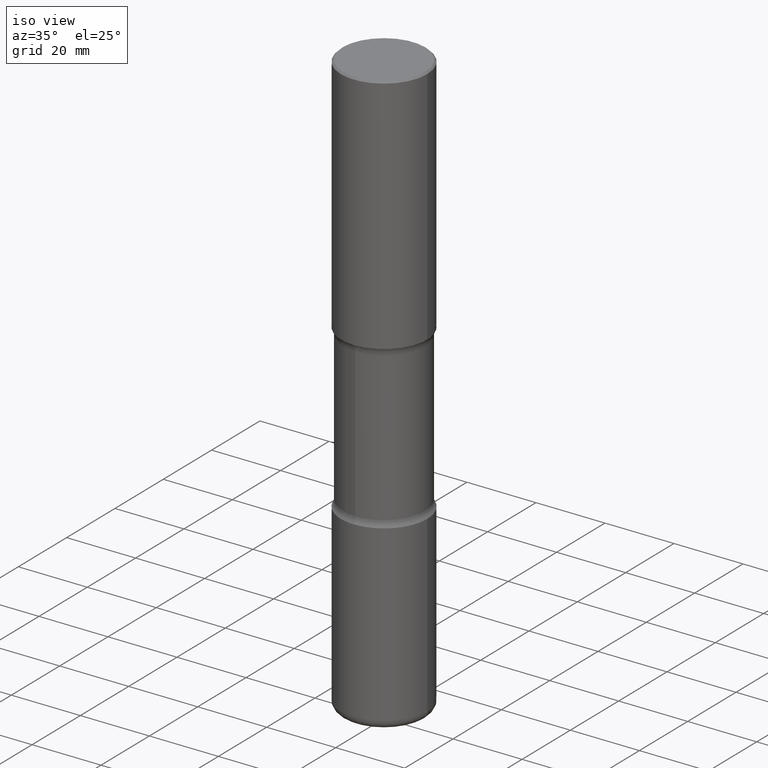
[diagram: clean part render]
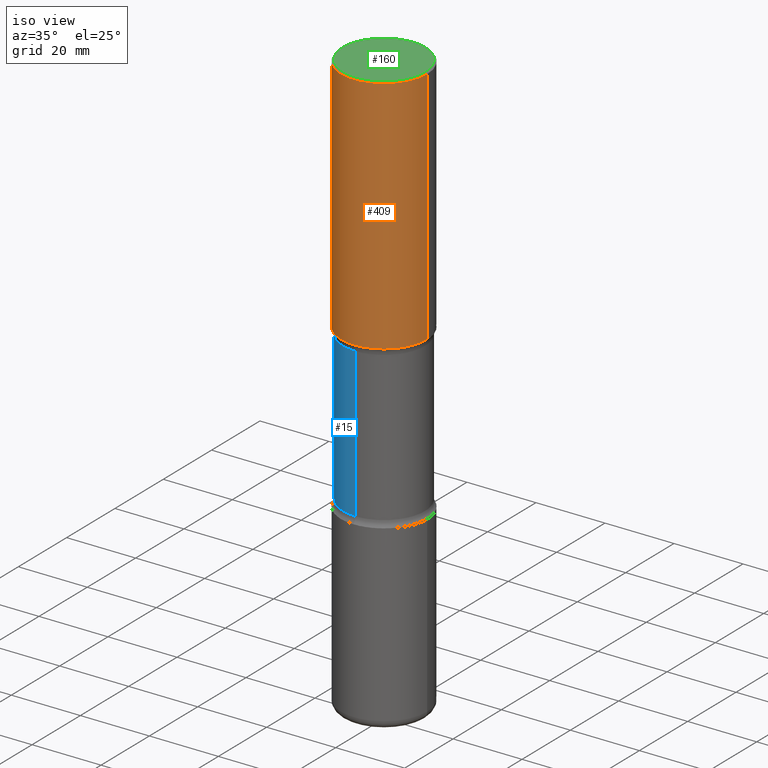
[diagram: same view with three faces highlighted in distinct colors, each labeled with its STEP entity id]
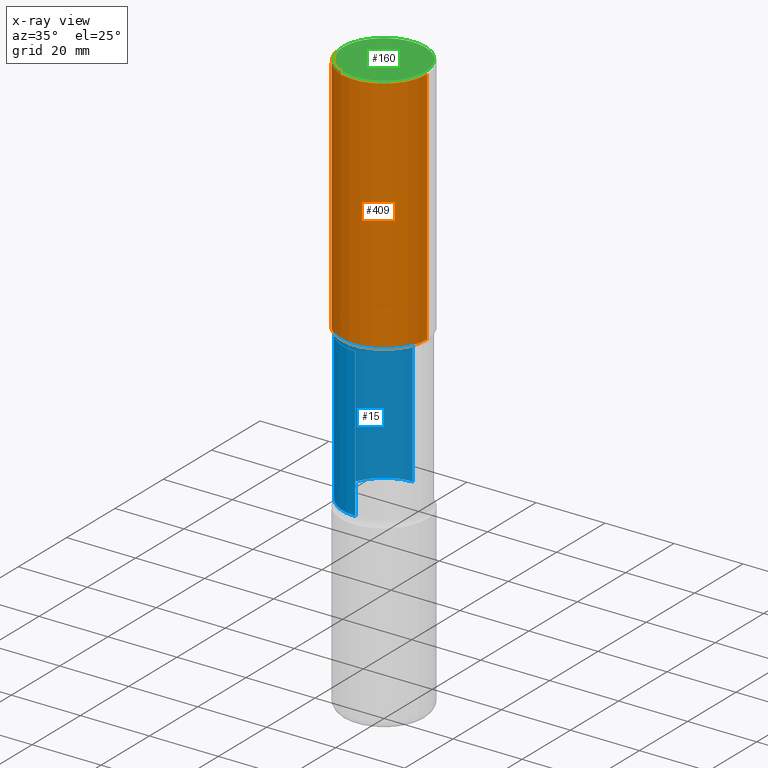
[diagram: x-ray of the same camera — body ghosted, the three highlighted faces saturated]
A machine part, iso view with three faces highlighted in distinct colors.
The next image is the same camera in x-ray (body ghosted, the three faces saturated) — at least one of them is partly hidden behind the body in this view.
Their STEP definitions:

[orange] entity #409 — the highlighted cylindrical surface (partial cylindrical patch) has radius 12.5006 mm, axis along (-0, 0, 1).
#31 = DIRECTION ( 'NONE',  ( 1.000000000000000000, -6.982962677686265922E-15, 0.000000000000000000 ) ) ;
#35 = CIRCLE ( 'NONE', #44, 0.4921499999999999209 ) ;
#44 = AXIS2_PLACEMENT_3D ( 'NONE', #66, #237, #31 ) ;
#56 = DIRECTION ( 'NONE',  ( -2.445468806185136597E-29, 3.491481338843145583E-15, 1.000000000000000000 ) ) ;
#66 = CARTESIAN_POINT ( 'NONE',  ( 4.890937612370289799E-31, -6.982962677686315028E-17, -0.02000000000000006981 ) ) ;
#78 = DIRECTION ( 'NONE',  ( 1.000000000000000000, -6.982962677686265922E-15, 4.876176775795935793E-29 ) ) ;
#80 = CARTESIAN_POINT ( 'NONE',  ( -0.4921500000000002539, -1.349065450204005425E-15, -2.755899999999998240 ) ) ;
#87 = ORIENTED_EDGE ( 'NONE', *, *, #446, .T. ) ;
#90 = EDGE_LOOP ( 'NONE', ( #434, #87, #127, #210 ) ) ;
#127 = ORIENTED_EDGE ( 'NONE', *, *, #540, .T. ) ;
#129 = FACE_OUTER_BOUND ( 'NONE', #90, .T. ) ;
#141 = DIRECTION ( 'NONE',  ( -2.445468806185136877E-29, 3.491481338843145188E-15, 1.000000000000000000 ) ) ;
#148 = EDGE_CURVE ( 'NONE', #548, #197, #404, .T. ) ;
#194 = CARTESIAN_POINT ( 'NONE',  ( 0.000000000000000000, 0.000000000000000000, 0.000000000000000000 ) ) ;
#197 = VERTEX_POINT ( 'NONE', #273 ) ;
#210 = ORIENTED_EDGE ( 'NONE', *, *, #217, .F. ) ;
#217 = EDGE_CURVE ( 'NONE', #197, #398, #35, .T. ) ;
#218 = AXIS2_PLACEMENT_3D ( 'NONE', #286, #509, #321 ) ;
#237 = DIRECTION ( 'NONE',  ( -2.445468806185136597E-29, 3.491481338843145583E-15, 1.000000000000000000 ) ) ;
#273 = CARTESIAN_POINT ( 'NONE',  ( -0.4921499999999999209, 3.366835455046432084E-15, -0.02000000000000006981 ) ) ;
#283 = VECTOR ( 'NONE', #141, 39.37007874015748143 ) ;
#286 = CARTESIAN_POINT ( 'NONE',  ( 6.739467482965614869E-29, -9.622173421717819657E-15, -2.755899999999998240 ) ) ;
#294 = CYLINDRICAL_SURFACE ( 'NONE', #344, 0.4921500000000000874 ) ;
#321 = DIRECTION ( 'NONE',  ( 1.000000000000000000, -6.982962677686266711E-15, 0.000000000000000000 ) ) ;
#328 = CIRCLE ( 'NONE', #218, 0.4921500000000002539 ) ;
#329 = VECTOR ( 'NONE', #512, 39.37007874015748143 ) ;
#333 = CARTESIAN_POINT ( 'NONE',  ( 0.4921500000000000874, -3.436665081823296565E-15, 2.399810400207970163E-29 ) ) ;
#344 = AXIS2_PLACEMENT_3D ( 'NONE', #194, #56, #78 ) ;
#368 = CARTESIAN_POINT ( 'NONE',  ( 0.4921499999999999209, -3.446223716380121955E-15, -0.02000000000000006981 ) ) ;
#383 = VERTEX_POINT ( 'NONE', #471 ) ;
#398 = VERTEX_POINT ( 'NONE', #368 ) ;
#404 = LINE ( 'NONE', #448, #283 ) ;
#409 = ADVANCED_FACE ( 'NONE', ( #129 ), #294, .T. ) ;
#434 = ORIENTED_EDGE ( 'NONE', *, *, #148, .F. ) ;
#446 = EDGE_CURVE ( 'NONE', #548, #383, #328, .T. ) ;
#448 = CARTESIAN_POINT ( 'NONE',  ( -0.4921500000000000874, 3.496936074043333686E-15, -2.420853904668952350E-29 ) ) ;
#471 = CARTESIAN_POINT ( 'NONE',  ( 0.4921500000000002539, -1.305883850354111701E-14, -2.755899999999998240 ) ) ;
#509 = DIRECTION ( 'NONE',  ( -2.445468806185136597E-29, 3.491481338843145583E-15, 1.000000000000000000 ) ) ;
#512 = DIRECTION ( 'NONE',  ( -2.445468806185136877E-29, 3.491481338843145188E-15, 1.000000000000000000 ) ) ;
#540 = EDGE_CURVE ( 'NONE', #383, #398, #545, .T. ) ;
#545 = LINE ( 'NONE', #333, #329 ) ;
#548 = VERTEX_POINT ( 'NONE', #80 ) ;

[blue] entity #15 — the highlighted cylindrical surface (partial cylindrical patch) has radius 11.8745 mm, axis along (0, -0, -1).
#15 = ADVANCED_FACE ( 'NONE', ( #547 ), #324, .T. ) ;
#32 = CARTESIAN_POINT ( 'NONE',  ( 3.264535051818397450E-15, 0.4674999999999899791, -2.830431050576254215 ) ) ;
#43 = EDGE_CURVE ( 'NONE', #497, #387, #315, .T. ) ;
#55 = CARTESIAN_POINT ( 'NONE',  ( 3.264535051818492903E-15, 0.4674999999999766009, -6.692899999999999849 ) ) ;
#61 = AXIS2_PLACEMENT_3D ( 'NONE', #420, #453, #162 ) ;
#79 = ORIENTED_EDGE ( 'NONE', *, *, #43, .T. ) ;
#99 = DIRECTION ( 'NONE',  ( 6.982962677686266711E-15, 1.000000000000000000, -3.506115072082477581E-15 ) ) ;
#101 = DIRECTION ( 'NONE',  ( 2.478950746902979070E-29, -3.443533294061476764E-15, -1.000000000000000000 ) ) ;
#119 = CARTESIAN_POINT ( 'NONE',  ( -3.291838451780614217E-15, -0.4675000000000157918, -4.531768949423744530 ) ) ;
#154 = ORIENTED_EDGE ( 'NONE', *, *, #478, .F. ) ;
#158 = VECTOR ( 'NONE', #424, 39.37007874015748143 ) ;
#159 = DIRECTION ( 'NONE',  ( 2.478950746902978790E-29, -3.443533294061476764E-15, -1.000000000000000000 ) ) ;
#162 = DIRECTION ( 'NONE',  ( 6.982962677686266711E-15, 1.000000000000000000, -3.506115072082477581E-15 ) ) ;
#178 = CIRCLE ( 'NONE', #61, 0.4674999999999999156 ) ;
#182 = EDGE_CURVE ( 'NONE', #335, #387, #253, .T. ) ;
#184 = VERTEX_POINT ( 'NONE', #270 ) ;
#188 = AXIS2_PLACEMENT_3D ( 'NONE', #534, #229, #99 ) ;
#229 = DIRECTION ( 'NONE',  ( 2.478950746902978790E-29, -3.443533294061476764E-15, -1.000000000000000000 ) ) ;
#253 = CIRCLE ( 'NONE', #188, 0.4674999999999999156 ) ;
#270 = CARTESIAN_POINT ( 'NONE',  ( -3.291838451780658393E-15, -0.4675000000000099076, -2.830431050576251106 ) ) ;
#278 = CARTESIAN_POINT ( 'NONE',  ( 3.264535051818439654E-15, 0.4674999999999840949, -4.531768949423748083 ) ) ;
#285 = DIRECTION ( 'NONE',  ( 6.982962677686265922E-15, 1.000000000000000000, -2.337410048054985186E-15 ) ) ;
#292 = CARTESIAN_POINT ( 'NONE',  ( -3.207282813958025392E-15, -0.4675000000000231748, -6.692899999999998073 ) ) ;
#298 = CARTESIAN_POINT ( 'NONE',  ( 1.643714159041834644E-28, -2.326808706250185533E-14, -6.692899999999998961 ) ) ;
#311 = ORIENTED_EDGE ( 'NONE', *, *, #182, .F. ) ;
#314 = EDGE_CURVE ( 'NONE', #184, #497, #178, .T. ) ;
#315 = LINE ( 'NONE', #55, #482 ) ;
#324 = CYLINDRICAL_SURFACE ( 'NONE', #521, 0.4674999999999998601 ) ;
#335 = VERTEX_POINT ( 'NONE', #119 ) ;
#351 = EDGE_LOOP ( 'NONE', ( #154, #554, #79, #311 ) ) ;
#387 = VERTEX_POINT ( 'NONE', #278 ) ;
#420 = CARTESIAN_POINT ( 'NONE',  ( 6.862271303354788236E-29, -9.967546637882530720E-15, -2.830431050576252883 ) ) ;
#424 = DIRECTION ( 'NONE',  ( 2.478950746902979070E-29, -3.443533294061476764E-15, -1.000000000000000000 ) ) ;
#453 = DIRECTION ( 'NONE',  ( 2.478950746902978790E-29, -3.443533294061476764E-15, -1.000000000000000000 ) ) ;
#478 = EDGE_CURVE ( 'NONE', #184, #335, #549, .T. ) ;
#482 = VECTOR ( 'NONE', #101, 39.37007874015748143 ) ;
#497 = VERTEX_POINT ( 'NONE', #32 ) ;
#521 = AXIS2_PLACEMENT_3D ( 'NONE', #298, #159, #285 ) ;
#534 = CARTESIAN_POINT ( 'NONE',  ( 1.107980415843712738E-28, -1.582616033701247086E-14, -4.531768949423746307 ) ) ;
#547 = FACE_OUTER_BOUND ( 'NONE', #351, .T. ) ;
#549 = LINE ( 'NONE', #292, #158 ) ;
#554 = ORIENTED_EDGE ( 'NONE', *, *, #314, .T. ) ;

[green] entity #160 — the highlighted planar face has unit normal (0, -0, -1).
#6 = CARTESIAN_POINT ( 'NONE',  ( 3.297005828269569180E-15, 0.4721499999999998476, -1.642100145399640064E-15 ) ) ;
#47 = FACE_OUTER_BOUND ( 'NONE', #500, .T. ) ;
#104 = AXIS2_PLACEMENT_3D ( 'NONE', #268, #525, #527 ) ;
#109 = VERTEX_POINT ( 'NONE', #350 ) ;
#136 = EDGE_CURVE ( 'NONE', #558, #109, #458, .T. ) ;
#144 = DIRECTION ( 'NONE',  ( -1.000000000000000000, 6.982962677686265922E-15, -4.876176775795935793E-29 ) ) ;
#160 = ADVANCED_FACE ( 'NONE', ( #47 ), #396, .F. ) ;
#209 = CARTESIAN_POINT ( 'NONE',  ( -0.4721499999999998476, 3.331920641658000829E-15, 1.280553747027805488E-17 ) ) ;
#248 = EDGE_CURVE ( 'NONE', #109, #558, #433, .T. ) ;
#268 = CARTESIAN_POINT ( 'NONE',  ( -3.131554243005659264E-46, 4.471029511141341874E-32, 1.280553747030123384E-17 ) ) ;
#293 = AXIS2_PLACEMENT_3D ( 'NONE', #6, #485, #144 ) ;
#318 = ORIENTED_EDGE ( 'NONE', *, *, #136, .T. ) ;
#350 = CARTESIAN_POINT ( 'NONE',  ( 0.4721499999999998476, -3.342703923013974974E-15, 1.280553747032445131E-17 ) ) ;
#372 = ORIENTED_EDGE ( 'NONE', *, *, #248, .T. ) ;
#396 = PLANE ( 'NONE',  #293 ) ;
#429 = DIRECTION ( 'NONE',  ( 1.000000000000000000, -6.982962677686265922E-15, 4.876006802227160734E-29 ) ) ;
#433 = CIRCLE ( 'NONE', #483, 0.4721499999999998476 ) ;
#458 = CIRCLE ( 'NONE', #104, 0.4721499999999998476 ) ;
#474 = CARTESIAN_POINT ( 'NONE',  ( -3.131554243005659264E-46, 4.471029511141341874E-32, 1.280553747030123384E-17 ) ) ;
#483 = AXIS2_PLACEMENT_3D ( 'NONE', #474, #516, #429 ) ;
#485 = DIRECTION ( 'NONE',  ( 2.438088387897960049E-29, -3.491481338843145188E-15, -1.000000000000000000 ) ) ;
#500 = EDGE_LOOP ( 'NONE', ( #318, #372 ) ) ;
#516 = DIRECTION ( 'NONE',  ( -2.445468806185136597E-29, 3.491481338843145583E-15, 1.000000000000000000 ) ) ;
#525 = DIRECTION ( 'NONE',  ( -2.445468806185136597E-29, 3.491481338843145583E-15, 1.000000000000000000 ) ) ;
#527 = DIRECTION ( 'NONE',  ( 1.000000000000000000, -6.982962677686265922E-15, 4.876006802227160734E-29 ) ) ;
#558 = VERTEX_POINT ( 'NONE', #209 ) ;